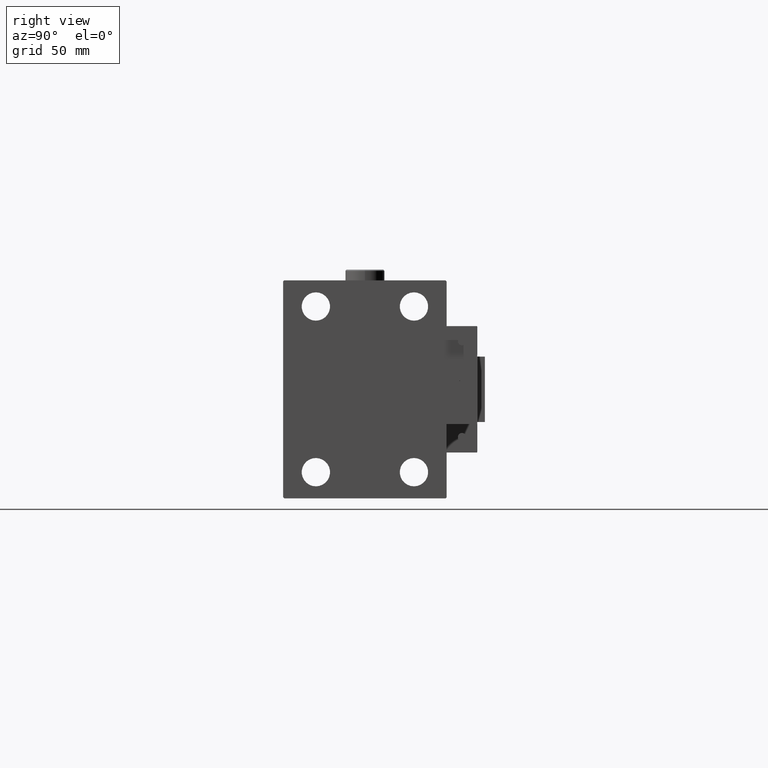
[diagram: clean part render]
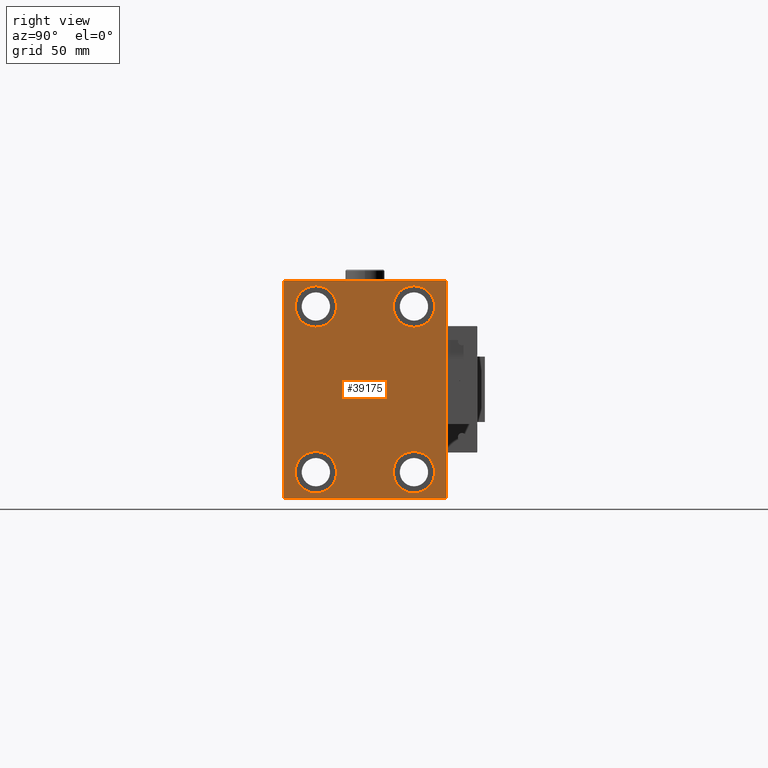
[diagram: same view with one face highlighted and labeled with its STEP entity id]
A machine part, right view. The second image highlights one B-rep face of the part: STEP entity #39175.
In plain terms, the highlighted planar face has unit normal (1, 0, 0).
Its self-contained STEP definition (entity closure, byte-faithful):
#218 = VECTOR ( 'NONE', #2469, 999.9999999999998863 ) ;
#669 = CIRCLE ( 'NONE', #31472, 9.500000000000001776 ) ;
#1286 = DIRECTION ( 'NONE',  ( -1.000000000000000000, -0.000000000000000000, -0.000000000000000000 ) ) ;
#1838 = DIRECTION ( 'NONE',  ( -1.000000000000000000, -0.000000000000000000, -0.000000000000000000 ) ) ;
#2057 = CARTESIAN_POINT ( 'NONE',  ( 153.0000000000000000, -22.50000000000000711, -37.99999999999999289 ) ) ;
#2117 = ORIENTED_EDGE ( 'NONE', *, *, #12756, .T. ) ;
#2197 = EDGE_CURVE ( 'NONE', #45864, #26048, #41983, .T. ) ;
#2240 = CARTESIAN_POINT ( 'NONE',  ( 153.0000000000000000, 22.50000000000000355, 37.99999999999999289 ) ) ;
#2469 = DIRECTION ( 'NONE',  ( -0.000000000000000000, -0.7071067811865425767, 0.7071067811865525687 ) ) ;
#2511 = CARTESIAN_POINT ( 'NONE',  ( 153.0000000000000000, 37.49999999999999289, 49.50000000000000000 ) ) ;
#3238 = ORIENTED_EDGE ( 'NONE', *, *, #45741, .T. ) ;
#3666 = CARTESIAN_POINT ( 'NONE',  ( 153.0000000000000000, 0.000000000000000000, 0.000000000000000000 ) ) ;
#3822 = VECTOR ( 'NONE', #46502, 1000.000000000000114 ) ;
#3852 = CARTESIAN_POINT ( 'NONE',  ( 153.0000000000000000, 22.50000000000000355, 28.49999999999998934 ) ) ;
#3934 = FACE_BOUND ( 'NONE', #24997, .T. ) ;
#4221 = EDGE_CURVE ( 'NONE', #51580, #8030, #669, .T. ) ;
#4671 = EDGE_LOOP ( 'NONE', ( #36860, #12303, #47398, #46685, #38702, #52081, #50430, #21909 ) ) ;
#5279 = DIRECTION ( 'NONE',  ( 0.000000000000000000, -1.000000000000000000, -1.850371707708594316E-16 ) ) ;
#6089 = DIRECTION ( 'NONE',  ( 0.000000000000000000, 0.000000000000000000, 1.000000000000000000 ) ) ;
#6408 = ORIENTED_EDGE ( 'NONE', *, *, #31062, .T. ) ;
#6482 = DIRECTION ( 'NONE',  ( 0.000000000000000000, 0.000000000000000000, -1.000000000000000000 ) ) ;
#6887 = DIRECTION ( 'NONE',  ( 0.000000000000000000, 0.000000000000000000, 1.000000000000000000 ) ) ;
#6908 = DIRECTION ( 'NONE',  ( -1.000000000000000000, -0.000000000000000000, -0.000000000000000000 ) ) ;
#7297 = AXIS2_PLACEMENT_3D ( 'NONE', #3666, #12204, #7511 ) ;
#7511 = DIRECTION ( 'NONE',  ( 0.000000000000000000, 0.000000000000000000, -1.000000000000000000 ) ) ;
#8030 = VERTEX_POINT ( 'NONE', #45959 ) ;
#8120 = VERTEX_POINT ( 'NONE', #29429 ) ;
#8581 = CARTESIAN_POINT ( 'NONE',  ( 153.0000000000000000, -37.50000000000000711, -49.50000000000003553 ) ) ;
#9040 = DIRECTION ( 'NONE',  ( -0.000000000000000000, 0.7071067811865474617, 0.7071067811865474617 ) ) ;
#9635 = VERTEX_POINT ( 'NONE', #3852 ) ;
#10646 = DIRECTION ( 'NONE',  ( 0.000000000000000000, 0.000000000000000000, 1.000000000000000000 ) ) ;
#10759 = DIRECTION ( 'NONE',  ( -1.000000000000000000, -0.000000000000000000, -0.000000000000000000 ) ) ;
#11130 = AXIS2_PLACEMENT_3D ( 'NONE', #33780, #42045, #25000 ) ;
#11915 = FACE_BOUND ( 'NONE', #49653, .T. ) ;
#11967 = CARTESIAN_POINT ( 'NONE',  ( 153.0000000000000000, -37.50000000000000711, 49.99999999999999289 ) ) ;
#12204 = DIRECTION ( 'NONE',  ( 1.000000000000000000, 0.000000000000000000, 0.000000000000000000 ) ) ;
#12303 = ORIENTED_EDGE ( 'NONE', *, *, #18798, .T. ) ;
#12501 = VERTEX_POINT ( 'NONE', #40992 ) ;
#12756 = EDGE_CURVE ( 'NONE', #26048, #45864, #21196, .T. ) ;
#13404 = EDGE_CURVE ( 'NONE', #21740, #21807, #14096, .T. ) ;
#13671 = CARTESIAN_POINT ( 'NONE',  ( 153.0000000000000000, -22.49999999999999645, 47.49999999999999289 ) ) ;
#14096 = LINE ( 'NONE', #51861, #42286 ) ;
#14225 = CARTESIAN_POINT ( 'NONE',  ( 153.0000000000000000, -22.49999999999999645, 37.99999999999999289 ) ) ;
#14611 = EDGE_CURVE ( 'NONE', #39987, #8120, #26118, .T. ) ;
#15058 = DIRECTION ( 'NONE',  ( 0.000000000000000000, -1.387778780781445676E-16, 1.000000000000000000 ) ) ;
#15173 = VECTOR ( 'NONE', #18168, 1000.000000000000000 ) ;
#16074 = FACE_OUTER_BOUND ( 'NONE', #4671, .T. ) ;
#16196 = CIRCLE ( 'NONE', #30271, 9.500000000000001776 ) ;
#16912 = DIRECTION ( 'NONE',  ( -1.000000000000000000, -0.000000000000000000, -0.000000000000000000 ) ) ;
#17687 = CARTESIAN_POINT ( 'NONE',  ( 153.0000000000000000, -22.50000000000000711, -28.49999999999998934 ) ) ;
#18168 = DIRECTION ( 'NONE',  ( 0.000000000000000000, 1.000000000000000000, 9.251858538542970348E-17 ) ) ;
#18393 = AXIS2_PLACEMENT_3D ( 'NONE', #2240, #6908, #6089 ) ;
#18798 = EDGE_CURVE ( 'NONE', #21807, #24916, #37136, .T. ) ;
#19010 = LINE ( 'NONE', #44350, #218 ) ;
#19469 = ORIENTED_EDGE ( 'NONE', *, *, #31611, .T. ) ;
#19918 = EDGE_CURVE ( 'NONE', #12501, #39987, #51794, .T. ) ;
#20581 = ORIENTED_EDGE ( 'NONE', *, *, #2197, .T. ) ;
#21057 = CARTESIAN_POINT ( 'NONE',  ( 153.0000000000000000, 22.49999999999999645, -37.99999999999999289 ) ) ;
#21090 = CIRCLE ( 'NONE', #18393, 9.500000000000001776 ) ;
#21196 = CIRCLE ( 'NONE', #51975, 9.500000000000001776 ) ;
#21740 = VERTEX_POINT ( 'NONE', #22881 ) ;
#21807 = VERTEX_POINT ( 'NONE', #36603 ) ;
#21909 = ORIENTED_EDGE ( 'NONE', *, *, #41232, .T. ) ;
#22881 = CARTESIAN_POINT ( 'NONE',  ( 153.0000000000000000, 36.99999999999999289, 50.00000000000000711 ) ) ;
#23302 = VERTEX_POINT ( 'NONE', #30531 ) ;
#23438 = CARTESIAN_POINT ( 'NONE',  ( 153.0000000000000000, 22.49999999999999645, -37.99999999999999289 ) ) ;
#23564 = AXIS2_PLACEMENT_3D ( 'NONE', #23438, #44634, #6887 ) ;
#23718 = CIRCLE ( 'NONE', #28997, 9.500000000000001776 ) ;
#23889 = EDGE_CURVE ( 'NONE', #24916, #41823, #49738, .T. ) ;
#24205 = ORIENTED_EDGE ( 'NONE', *, *, #40568, .T. ) ;
#24540 = EDGE_CURVE ( 'NONE', #8030, #51580, #45538, .T. ) ;
#24829 = CIRCLE ( 'NONE', #45937, 9.500000000000001776 ) ;
#24916 = VERTEX_POINT ( 'NONE', #48648 ) ;
#24997 = EDGE_LOOP ( 'NONE', ( #26242, #40383 ) ) ;
#25000 = DIRECTION ( 'NONE',  ( 0.000000000000000000, 0.000000000000000000, 1.000000000000000000 ) ) ;
#25316 = CARTESIAN_POINT ( 'NONE',  ( 153.0000000000000000, -43.50000000000002132, -43.50000000000002132 ) ) ;
#26048 = VERTEX_POINT ( 'NONE', #13671 ) ;
#26118 = LINE ( 'NONE', #41637, #27385 ) ;
#26242 = ORIENTED_EDGE ( 'NONE', *, *, #4221, .T. ) ;
#26785 = CARTESIAN_POINT ( 'NONE',  ( 153.0000000000000000, 37.00000000000000711, -50.00000000000000000 ) ) ;
#26994 = DIRECTION ( 'NONE',  ( 0.000000000000000000, 0.000000000000000000, 1.000000000000000000 ) ) ;
#27329 = VECTOR ( 'NONE', #42097, 1000.000000000000114 ) ;
#27385 = VECTOR ( 'NONE', #9040, 1000.000000000000114 ) ;
#27476 = CARTESIAN_POINT ( 'NONE',  ( 153.0000000000000000, 37.50000000000000711, -50.00000000000000000 ) ) ;
#28833 = VECTOR ( 'NONE', #6482, 1000.000000000000000 ) ;
#28997 = AXIS2_PLACEMENT_3D ( 'NONE', #48678, #1838, #10646 ) ;
#29429 = CARTESIAN_POINT ( 'NONE',  ( 153.0000000000000000, 37.50000000000000711, -49.50000000000000000 ) ) ;
#30271 = AXIS2_PLACEMENT_3D ( 'NONE', #48788, #10759, #39406 ) ;
#30531 = CARTESIAN_POINT ( 'NONE',  ( 153.0000000000000000, 22.50000000000000355, 47.49999999999999289 ) ) ;
#30743 = CARTESIAN_POINT ( 'NONE',  ( 153.0000000000000000, 22.49999999999999645, -47.49999999999999289 ) ) ;
#30915 = VERTEX_POINT ( 'NONE', #17687 ) ;
#31062 = EDGE_CURVE ( 'NONE', #23302, #9635, #21090, .T. ) ;
#31472 = AXIS2_PLACEMENT_3D ( 'NONE', #21057, #16912, #26994 ) ;
#31611 = EDGE_CURVE ( 'NONE', #30915, #35432, #23718, .T. ) ;
#31745 = EDGE_CURVE ( 'NONE', #8120, #33970, #35986, .T. ) ;
#32337 = EDGE_LOOP ( 'NONE', ( #20581, #2117 ) ) ;
#32753 = CARTESIAN_POINT ( 'NONE',  ( 153.0000000000000000, -22.49999999999999645, 28.49999999999998934 ) ) ;
#33780 = CARTESIAN_POINT ( 'NONE',  ( 153.0000000000000000, -22.49999999999999645, 37.99999999999999289 ) ) ;
#33970 = VERTEX_POINT ( 'NONE', #2511 ) ;
#34578 = EDGE_CURVE ( 'NONE', #41823, #12501, #46511, .T. ) ;
#35432 = VERTEX_POINT ( 'NONE', #49906 ) ;
#35986 = LINE ( 'NONE', #27476, #51876 ) ;
#36603 = CARTESIAN_POINT ( 'NONE',  ( 153.0000000000000000, -37.00000000000000711, 49.99999999999999289 ) ) ;
#36860 = ORIENTED_EDGE ( 'NONE', *, *, #13404, .T. ) ;
#37136 = LINE ( 'NONE', #50380, #3822 ) ;
#37543 = PLANE ( 'NONE',  #7297 ) ;
#38702 = ORIENTED_EDGE ( 'NONE', *, *, #19918, .T. ) ;
#39175 = ADVANCED_FACE ( 'NONE', ( #3934, #53831, #11915, #50516, #16074 ), #37543, .T. ) ;
#39406 = DIRECTION ( 'NONE',  ( 0.000000000000000000, 0.000000000000000000, 1.000000000000000000 ) ) ;
#39987 = VERTEX_POINT ( 'NONE', #26785 ) ;
#40383 = ORIENTED_EDGE ( 'NONE', *, *, #24540, .T. ) ;
#40568 = EDGE_CURVE ( 'NONE', #35432, #30915, #24829, .T. ) ;
#40992 = CARTESIAN_POINT ( 'NONE',  ( 153.0000000000000000, -37.00000000000003553, -50.00000000000000711 ) ) ;
#41232 = EDGE_CURVE ( 'NONE', #33970, #21740, #19010, .T. ) ;
#41637 = CARTESIAN_POINT ( 'NONE',  ( 153.0000000000000000, 43.50000000000000711, -43.50000000000000711 ) ) ;
#41823 = VERTEX_POINT ( 'NONE', #8581 ) ;
#41983 = CIRCLE ( 'NONE', #11130, 9.500000000000001776 ) ;
#42045 = DIRECTION ( 'NONE',  ( -1.000000000000000000, -0.000000000000000000, -0.000000000000000000 ) ) ;
#42097 = DIRECTION ( 'NONE',  ( -0.000000000000000000, 0.7071067811865474617, -0.7071067811865474617 ) ) ;
#42286 = VECTOR ( 'NONE', #5279, 1000.000000000000000 ) ;
#43160 = DIRECTION ( 'NONE',  ( 0.000000000000000000, 0.000000000000000000, 1.000000000000000000 ) ) ;
#44350 = CARTESIAN_POINT ( 'NONE',  ( 153.0000000000000000, 43.50000000000026290, 43.49999999999965894 ) ) ;
#44634 = DIRECTION ( 'NONE',  ( -1.000000000000000000, -0.000000000000000000, -0.000000000000000000 ) ) ;
#44726 = EDGE_LOOP ( 'NONE', ( #24205, #19469 ) ) ;
#45538 = CIRCLE ( 'NONE', #23564, 9.500000000000001776 ) ;
#45741 = EDGE_CURVE ( 'NONE', #9635, #23302, #16196, .T. ) ;
#45864 = VERTEX_POINT ( 'NONE', #32753 ) ;
#45937 = AXIS2_PLACEMENT_3D ( 'NONE', #2057, #52479, #48340 ) ;
#45959 = CARTESIAN_POINT ( 'NONE',  ( 153.0000000000000000, 22.49999999999999645, -28.49999999999998934 ) ) ;
#46502 = DIRECTION ( 'NONE',  ( 0.000000000000000000, -0.7071067811865474617, -0.7071067811865474617 ) ) ;
#46511 = LINE ( 'NONE', #25316, #27329 ) ;
#46685 = ORIENTED_EDGE ( 'NONE', *, *, #34578, .T. ) ;
#47398 = ORIENTED_EDGE ( 'NONE', *, *, #23889, .T. ) ;
#47924 = CARTESIAN_POINT ( 'NONE',  ( 153.0000000000000000, -37.50000000000000711, -50.00000000000000711 ) ) ;
#48340 = DIRECTION ( 'NONE',  ( 0.000000000000000000, 0.000000000000000000, 1.000000000000000000 ) ) ;
#48648 = CARTESIAN_POINT ( 'NONE',  ( 153.0000000000000000, -37.50000000000000711, 49.49999999999999289 ) ) ;
#48678 = CARTESIAN_POINT ( 'NONE',  ( 153.0000000000000000, -22.50000000000000711, -37.99999999999999289 ) ) ;
#48788 = CARTESIAN_POINT ( 'NONE',  ( 153.0000000000000000, 22.50000000000000355, 37.99999999999999289 ) ) ;
#49653 = EDGE_LOOP ( 'NONE', ( #3238, #6408 ) ) ;
#49738 = LINE ( 'NONE', #11967, #28833 ) ;
#49906 = CARTESIAN_POINT ( 'NONE',  ( 153.0000000000000000, -22.50000000000000711, -47.49999999999999289 ) ) ;
#50380 = CARTESIAN_POINT ( 'NONE',  ( 153.0000000000000000, -43.50000000000000711, 43.50000000000000711 ) ) ;
#50430 = ORIENTED_EDGE ( 'NONE', *, *, #31745, .T. ) ;
#50516 = FACE_BOUND ( 'NONE', #44726, .T. ) ;
#51580 = VERTEX_POINT ( 'NONE', #30743 ) ;
#51794 = LINE ( 'NONE', #47924, #15173 ) ;
#51861 = CARTESIAN_POINT ( 'NONE',  ( 153.0000000000000000, 37.49999999999999289, 50.00000000000000711 ) ) ;
#51876 = VECTOR ( 'NONE', #15058, 1000.000000000000000 ) ;
#51975 = AXIS2_PLACEMENT_3D ( 'NONE', #14225, #1286, #43160 ) ;
#52081 = ORIENTED_EDGE ( 'NONE', *, *, #14611, .T. ) ;
#52479 = DIRECTION ( 'NONE',  ( -1.000000000000000000, -0.000000000000000000, -0.000000000000000000 ) ) ;
#53831 = FACE_BOUND ( 'NONE', #32337, .T. ) ;